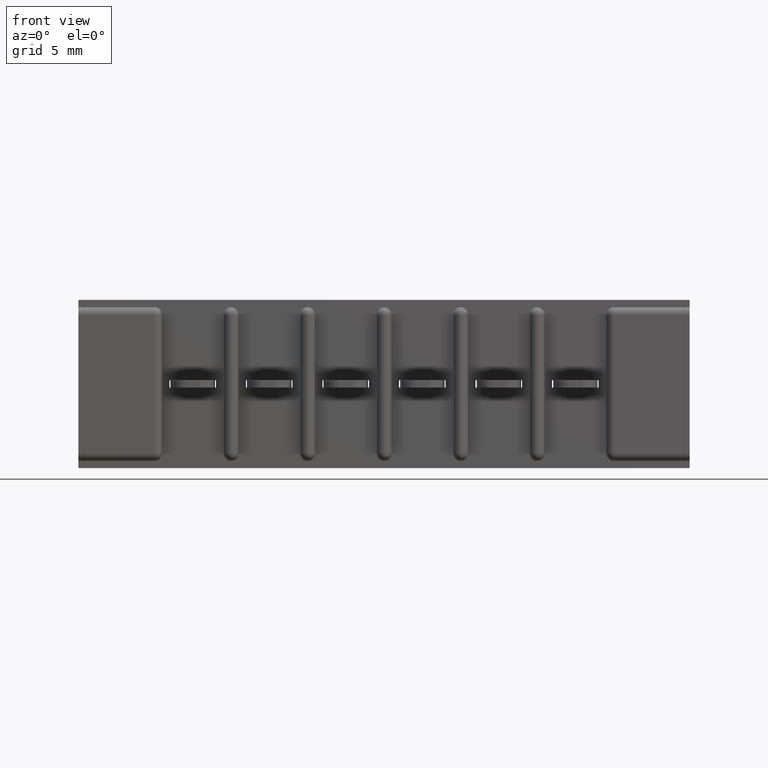
[diagram: clean part render]
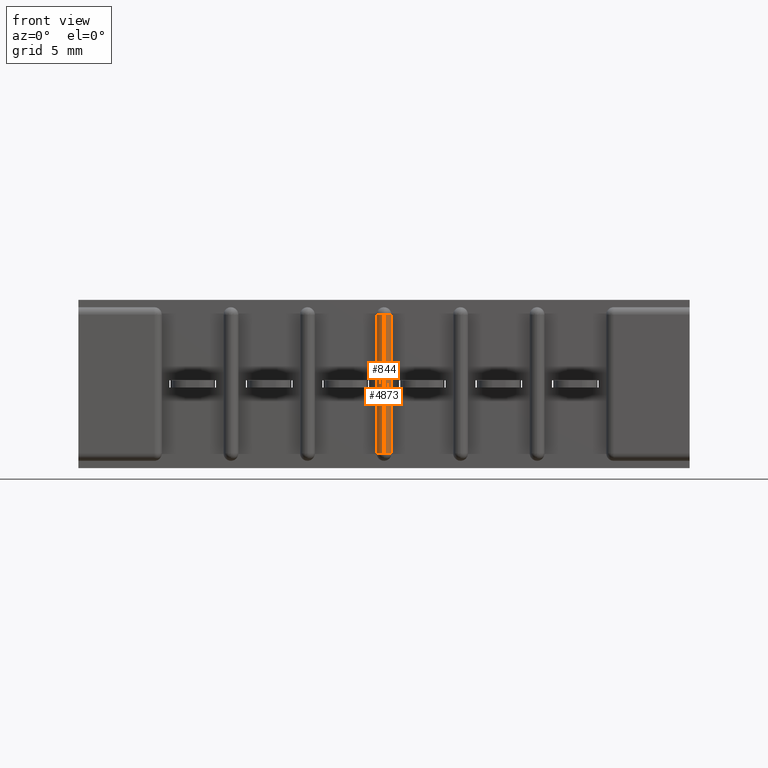
[diagram: same view with one multi-face feature highlighted, each face labeled with its STEP entity id]
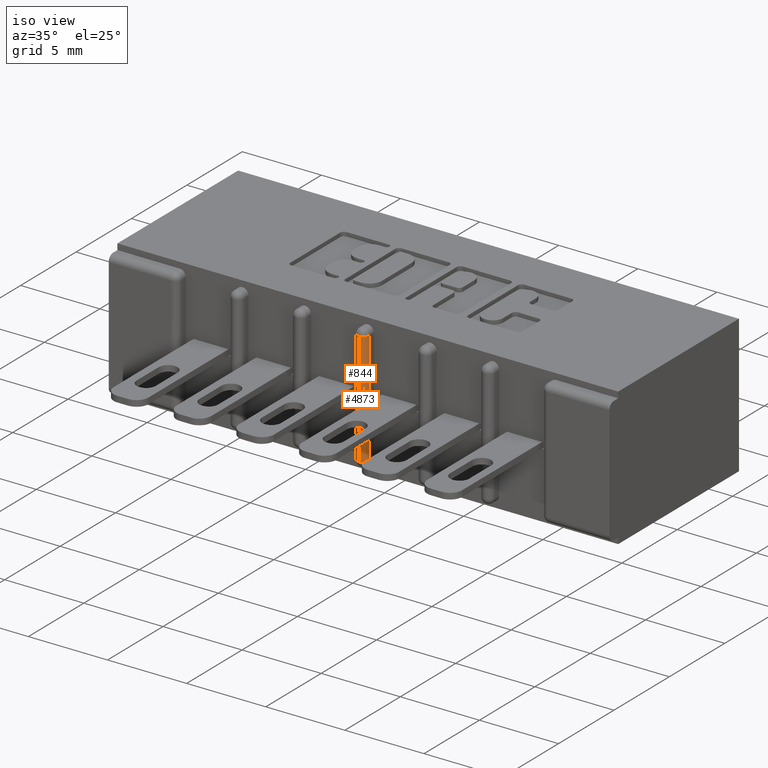
[diagram: same view with one multi-face feature highlighted, each face labeled with its STEP entity id]
A machine part, front view. The highlighted faces form ONE feature: a constant-radius fillet chain: 2 tangent blend faces with common blend radius 0.381 mm. The faces share edges in the B-rep.
A second angle (iso view) of the same feature is appended — it is thin or edge-on in the first view.
Their STEP definitions:
[1] entity #844 (Cylinder):
#111 = DIRECTION ( 'NONE',  ( 2.181987215386777700E-016, -0.0000000000000000000, -1.000000000000000000 ) ) ;
#406 = EDGE_CURVE ( 'NONE', #6014, #5406, #5064, .T. ) ;
#686 = ORIENTED_EDGE ( 'NONE', *, *, #4140, .T. ) ;
#800 = EDGE_CURVE ( 'NONE', #7303, #6014, #5797, .T. ) ;
#844 = ADVANCED_FACE ( 'NONE', ( #5554 ), #2732, .T. ) ;
#1087 = DIRECTION ( 'NONE',  ( -2.181987215386777700E-016, 0.0000000000000000000, 1.000000000000000000 ) ) ;
#1159 = CARTESIAN_POINT ( 'NONE',  ( 0.9060000000000009200, 0.01499999999999997700, -0.02999999999999995700 ) ) ;
#1480 = CARTESIAN_POINT ( 'NONE',  ( 0.9210000000000009300, 0.01499999999999999900, -0.02999999999999995400 ) ) ;
#1987 = CARTESIAN_POINT ( 'NONE',  ( 0.9210000000000009300, 0.01499999999999999900, -0.3130000000000000600 ) ) ;
#2276 = DIRECTION ( 'NONE',  ( 2.845674993400278400E-016, 0.0000000000000000000, -1.000000000000000000 ) ) ;
#2732 = CYLINDRICAL_SURFACE ( 'NONE', #4202, 0.01499999999999997700 ) ;
#3132 = CARTESIAN_POINT ( 'NONE',  ( 0.9210000000000009300, 0.01499999999999997700, -0.3280000000000020100 ) ) ;
#3562 = ORIENTED_EDGE ( 'NONE', *, *, #8339, .F. ) ;
#3609 = AXIS2_PLACEMENT_3D ( 'NONE', #1987, #4250, #5826 ) ;
#3748 = CARTESIAN_POINT ( 'NONE',  ( 0.9060000000000009200, 0.01499999999999997700, -0.3130000000000000600 ) ) ;
#4140 = EDGE_CURVE ( 'NONE', #7303, #7135, #8038, .T. ) ;
#4202 = AXIS2_PLACEMENT_3D ( 'NONE', #3132, #8569, #8636 ) ;
#4250 = DIRECTION ( 'NONE',  ( 0.0000000000000000000, -0.0000000000000000000, -1.000000000000000000 ) ) ;
#4869 = AXIS2_PLACEMENT_3D ( 'NONE', #1480, #2276, #7703 ) ;
#5064 = CIRCLE ( 'NONE', #3609, 0.01499999999999997700 ) ;
#5178 = VECTOR ( 'NONE', #1087, 39.37007874015748100 ) ;
#5183 = ORIENTED_EDGE ( 'NONE', *, *, #406, .F. ) ;
#5406 = VERTEX_POINT ( 'NONE', #3748 ) ;
#5554 = FACE_OUTER_BOUND ( 'NONE', #6582, .T. ) ;
#5797 = LINE ( 'NONE', #6358, #9956 ) ;
#5826 = DIRECTION ( 'NONE',  ( -1.000000000000000000, 0.0000000000000000000, 0.0000000000000000000 ) ) ;
#6014 = VERTEX_POINT ( 'NONE', #9963 ) ;
#6358 = CARTESIAN_POINT ( 'NONE',  ( 0.9210000000000009300, 0.0000000000000000000, -0.3130000000000000600 ) ) ;
#6582 = EDGE_LOOP ( 'NONE', ( #5183, #6608, #686, #3562 ) ) ;
#6608 = ORIENTED_EDGE ( 'NONE', *, *, #800, .F. ) ;
#7135 = VERTEX_POINT ( 'NONE', #9409 ) ;
#7248 = LINE ( 'NONE', #1159, #5178 ) ;
#7303 = VERTEX_POINT ( 'NONE', #7501 ) ;
#7501 = CARTESIAN_POINT ( 'NONE',  ( 0.9210000000000009300, 0.0000000000000000000, -0.02999999999999995400 ) ) ;
#7703 = DIRECTION ( 'NONE',  ( -1.000000000000000000, 0.0000000000000000000, -2.845674993400278400E-016 ) ) ;
#8038 = CIRCLE ( 'NONE', #4869, 0.01499999999999997700 ) ;
#8339 = EDGE_CURVE ( 'NONE', #5406, #7135, #7248, .T. ) ;
#8569 = DIRECTION ( 'NONE',  ( 2.181987215386777700E-016, 0.0000000000000000000, -1.000000000000000000 ) ) ;
#8636 = DIRECTION ( 'NONE',  ( -1.000000000000000000, 0.0000000000000000000, 0.0000000000000000000 ) ) ;
#9409 = CARTESIAN_POINT ( 'NONE',  ( 0.9060000000000009200, 0.01499999999999997700, -0.02999999999999995700 ) ) ;
#9956 = VECTOR ( 'NONE', #111, 39.37007874015748100 ) ;
#9963 = CARTESIAN_POINT ( 'NONE',  ( 0.9210000000000009300, 0.0000000000000000000, -0.3130000000000000600 ) ) ;
[2] entity #4873 (Cylinder):
#14 = ORIENTED_EDGE ( 'NONE', *, *, #7528, .F. ) ;
#111 = DIRECTION ( 'NONE',  ( 2.181987215386777700E-016, -0.0000000000000000000, -1.000000000000000000 ) ) ;
#186 = VERTEX_POINT ( 'NONE', #7890 ) ;
#344 = CARTESIAN_POINT ( 'NONE',  ( 0.9360000000000009400, 0.01499999999999997700, -0.3130000000000000600 ) ) ;
#687 = CARTESIAN_POINT ( 'NONE',  ( 0.9210000000000008200, 0.01499999999999999900, -0.02999999999999995400 ) ) ;
#800 = EDGE_CURVE ( 'NONE', #7303, #6014, #5797, .T. ) ;
#861 = AXIS2_PLACEMENT_3D ( 'NONE', #687, #9356, #6148 ) ;
#1144 = EDGE_CURVE ( 'NONE', #6014, #2833, #5286, .T. ) ;
#1298 = CARTESIAN_POINT ( 'NONE',  ( 0.9210000000000009300, 0.01499999999999999900, -0.3130000000000000600 ) ) ;
#1335 = EDGE_CURVE ( 'NONE', #7303, #186, #3090, .T. ) ;
#2719 = AXIS2_PLACEMENT_3D ( 'NONE', #3046, #3016, #8494 ) ;
#2833 = VERTEX_POINT ( 'NONE', #344 ) ;
#2940 = DIRECTION ( 'NONE',  ( 1.000000000000000000, 0.0000000000000000000, 0.0000000000000000000 ) ) ;
#3016 = DIRECTION ( 'NONE',  ( -6.545961646160333200E-016, 0.0000000000000000000, 1.000000000000000000 ) ) ;
#3046 = CARTESIAN_POINT ( 'NONE',  ( 0.9210000000000009300, 0.01499999999999997700, -0.3280000000000020100 ) ) ;
#3090 = CIRCLE ( 'NONE', #861, 0.01499999999999997700 ) ;
#3096 = DIRECTION ( 'NONE',  ( 6.545961646160333200E-016, 0.0000000000000000000, -1.000000000000000000 ) ) ;
#3982 = ORIENTED_EDGE ( 'NONE', *, *, #1335, .F. ) ;
#4136 = CYLINDRICAL_SURFACE ( 'NONE', #2719, 0.01499999999999997700 ) ;
#4873 = ADVANCED_FACE ( 'NONE', ( #5851 ), #4136, .T. ) ;
#4874 = ORIENTED_EDGE ( 'NONE', *, *, #1144, .T. ) ;
#5286 = CIRCLE ( 'NONE', #5441, 0.01499999999999997700 ) ;
#5411 = CARTESIAN_POINT ( 'NONE',  ( 0.9360000000000009400, 0.01499999999999997700, -0.3130000000000000600 ) ) ;
#5441 = AXIS2_PLACEMENT_3D ( 'NONE', #1298, #6016, #2940 ) ;
#5797 = LINE ( 'NONE', #6358, #9956 ) ;
#5851 = FACE_OUTER_BOUND ( 'NONE', #6542, .T. ) ;
#6014 = VERTEX_POINT ( 'NONE', #9963 ) ;
#6016 = DIRECTION ( 'NONE',  ( -0.0000000000000000000, 0.0000000000000000000, 1.000000000000000000 ) ) ;
#6148 = DIRECTION ( 'NONE',  ( 1.000000000000000000, 0.0000000000000000000, 5.691349986800556800E-016 ) ) ;
#6358 = CARTESIAN_POINT ( 'NONE',  ( 0.9210000000000009300, 0.0000000000000000000, -0.3130000000000000600 ) ) ;
#6542 = EDGE_LOOP ( 'NONE', ( #3982, #8358, #4874, #14 ) ) ;
#7303 = VERTEX_POINT ( 'NONE', #7501 ) ;
#7501 = CARTESIAN_POINT ( 'NONE',  ( 0.9210000000000009300, 0.0000000000000000000, -0.02999999999999995400 ) ) ;
#7528 = EDGE_CURVE ( 'NONE', #186, #2833, #9315, .T. ) ;
#7890 = CARTESIAN_POINT ( 'NONE',  ( 0.9360000000000007200, 0.01499999999999997700, -0.02999999999999994300 ) ) ;
#8358 = ORIENTED_EDGE ( 'NONE', *, *, #800, .T. ) ;
#8494 = DIRECTION ( 'NONE',  ( 1.000000000000000000, 0.0000000000000000000, 0.0000000000000000000 ) ) ;
#8817 = VECTOR ( 'NONE', #3096, 39.37007874015748100 ) ;
#9315 = LINE ( 'NONE', #5411, #8817 ) ;
#9356 = DIRECTION ( 'NONE',  ( -5.691349986800556800E-016, 0.0000000000000000000, 1.000000000000000000 ) ) ;
#9956 = VECTOR ( 'NONE', #111, 39.37007874015748100 ) ;
#9963 = CARTESIAN_POINT ( 'NONE',  ( 0.9210000000000009300, 0.0000000000000000000, -0.3130000000000000600 ) ) ;